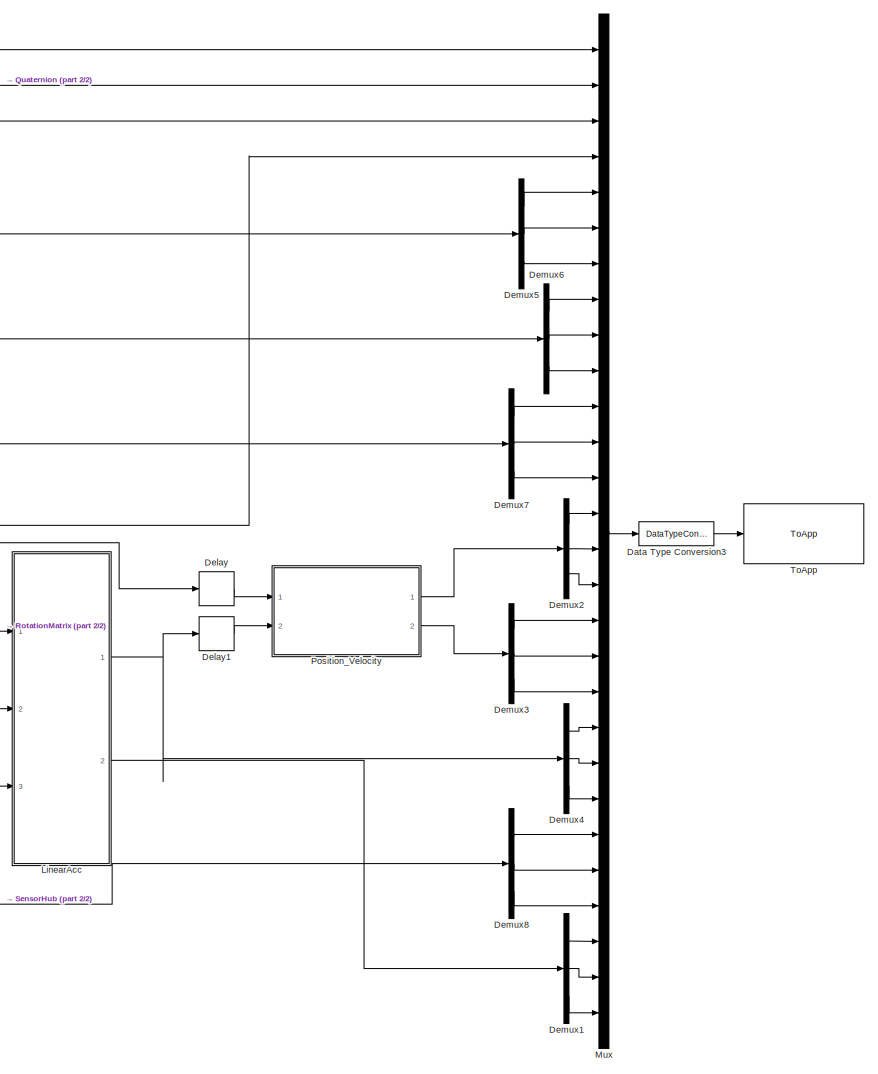
[diagram: root canvas - part 1/2, right side, full height]
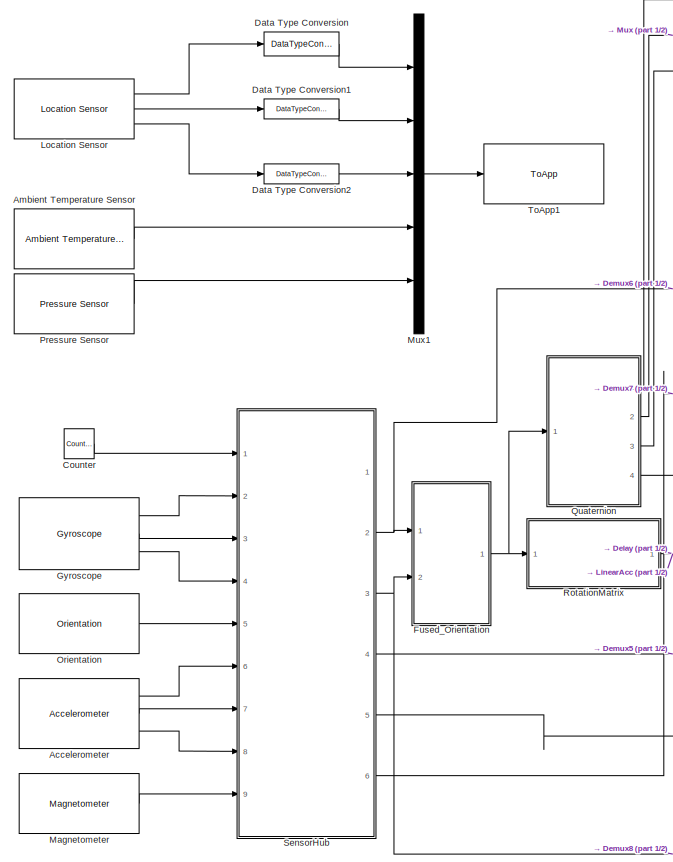
[diagram: root canvas - part 2/2, left side, full height]
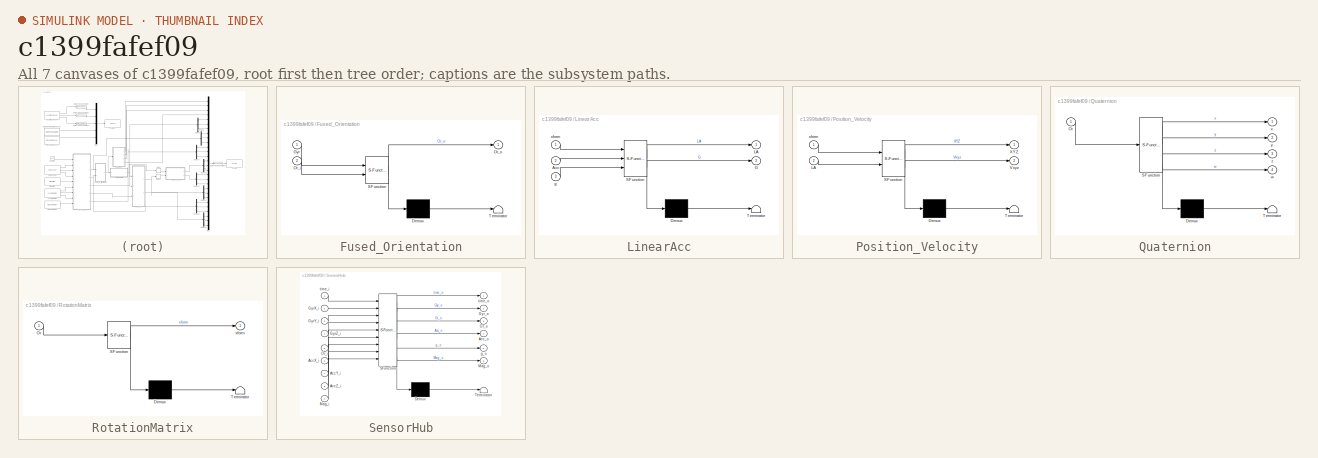
[diagram: thumbnail index - all 7 canvases of the model, root first then tree order]
MODEL slx_c1399fafef09
KIND model
CONFIG AbsTol = auto
CONFIG EnableMultiTasking = off
CONFIG FixedStep = auto
CONFIG MaxStep = auto
CONFIG MinStep = auto
CONFIG RelTol = 1e-3
CONFIG SampleTimeConstraint = Unconstrained
CONFIG Solver = FixedStepAuto
CONFIG SolverName = FixedStepAuto
CONFIG StartTime = 0.0
CONFIG StopTime = 10.0
BLOCK [Reference] Accelerometer  REF=androidsensorlib/Accelerometer
  Ports = [0, 3]
  SourceBlock = androidsensorlib/Accelerometer
  SourceProductBaseCode = ANDROID
  SourceProductName = Simulink Support Package for Android Devices
  SourceType = codertarget.internal.androidAccelerometer
BLOCK [Reference] Ambient Temperature Sensor  REF=androidsensorlib/Ambient Temperature Sensor
  Ports = [0, 1]
  SourceBlock = androidsensorlib/Ambient Temperature Sensor
  SourceProductBaseCode = ANDROID
  SourceProductName = Simulink Support Package for Android Devices
  SourceType = codertarget.internal.androidAmbientTemperature
BLOCK [Reference] Counter  REF=simulink/Sources/Counter
Free-Running
  Ports = [0, 1]
  SourceBlock = simulink/Sources/Counter\nFree-Running
  SourceProductBaseCode = SL
  SourceProductName = Simulink
  SourceType = Counter Free-Running
BLOCK [DataTypeConversion] Data Type Conversion
  OutDataTypeStr = single
  RndMeth = Floor
  SaturateOnIntegerOverflow = off
BLOCK [DataTypeConversion] Data Type Conversion1
  OutDataTypeStr = single
  RndMeth = Floor
  SaturateOnIntegerOverflow = off
BLOCK [DataTypeConversion] Data Type Conversion2
  OutDataTypeStr = single
  RndMeth = Floor
  SaturateOnIntegerOverflow = off
BLOCK [DataTypeConversion] Data Type Conversion3
  OutDataTypeStr = single
  RndMeth = Floor
  SaturateOnIntegerOverflow = off
BLOCK [Delay] Delay
  DelayLength = 1
  InitialCondition = 0
  InputPortMap = u0
  Ports = [1, 1]
BLOCK [Delay] Delay1
  DelayLength = 1
  InitialCondition = 0
  InputPortMap = u0
  Ports = [1, 1]
BLOCK [Demux] Demux1
  DisplayOption = bar
  Outputs = 3
  Ports = [1, 3]
BLOCK [Demux] Demux2
  DisplayOption = bar
  Outputs = 3
  Ports = [1, 3]
BLOCK [Demux] Demux3
  DisplayOption = bar
  Outputs = 3
  Ports = [1, 3]
BLOCK [Demux] Demux4
  DisplayOption = bar
  Outputs = 3
  Ports = [1, 3]
BLOCK [Demux] Demux5
  DisplayOption = bar
  Outputs = 3
  Ports = [1, 3]
BLOCK [Demux] Demux6
  DisplayOption = bar
  Outputs = 3
  Ports = [1, 3]
BLOCK [Demux] Demux7
  DisplayOption = bar
  Outputs = 3
  Ports = [1, 3]
BLOCK [Demux] Demux8
  DisplayOption = bar
  Outputs = 3
  Ports = [1, 3]
BLOCK [SubSystem] Fused_Orientation
  ErrorFcn = Stateflow.Translate.translate
  PermitHierarchicalResolution = ExplicitOnly
  Ports = [2, 1]
  RequestExecContextInheritance = off
  SFBlockType = MATLAB Function
  TreatAsAtomicUnit = on
BLOCK [Demux] Fused_Orientation/ Demux 
  Outputs = 1
  Ports = [1, 1]
BLOCK [S-Function] Fused_Orientation/ SFunction 
  EnableBusSupport = on
  FunctionName = sf_sfun
  PortCounts = [2 2]
  Ports = [2, 2]
  SFcnIsStateOwnerBlock = off
  SFunctionDeploymentMode = off
  Tag = Stateflow S-Function 5
BLOCK [Terminator] Fused_Orientation/ Terminator 
BLOCK [Inport] Fused_Orientation/Gyr
  IconDisplay = Port number
BLOCK [Inport] Fused_Orientation/Or_i
  IconDisplay = Port number
  Port = 2
BLOCK [Outport] Fused_Orientation/Or_o
  IconDisplay = Port number
BLOCK [Reference] Gyroscope  REF=androidsensorlib/Gyroscope
  Ports = [0, 3]
  SourceBlock = androidsensorlib/Gyroscope
  SourceProductBaseCode = ANDROID
  SourceProductName = Simulink Support Package for Android Devices
  SourceType = codertarget.internal.androidGyroscope
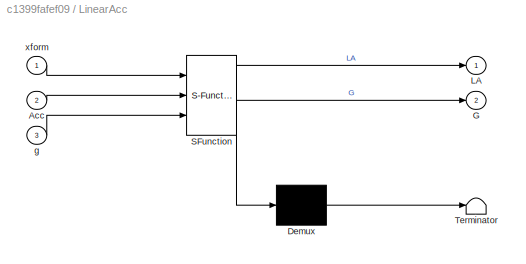
BLOCK [SubSystem] LinearAcc
  ErrorFcn = Stateflow.Translate.translate
  PermitHierarchicalResolution = ExplicitOnly
  Ports = [3, 2]
  RequestExecContextInheritance = off
  SFBlockType = MATLAB Function
  TreatAsAtomicUnit = on
BLOCK [Demux] LinearAcc/ Demux 
  Outputs = 1
  Ports = [1, 1]
BLOCK [S-Function] LinearAcc/ SFunction 
  EnableBusSupport = on
  FunctionName = sf_sfun
  PortCounts = [3 3]
  Ports = [3, 3]
  SFcnIsStateOwnerBlock = off
  SFunctionDeploymentMode = off
  Tag = Stateflow S-Function 1
BLOCK [Terminator] LinearAcc/ Terminator 
BLOCK [Inport] LinearAcc/Acc
  IconDisplay = Port number
  Port = 2
BLOCK [Outport] LinearAcc/G
  IconDisplay = Port number
  Port = 2
BLOCK [Outport] LinearAcc/LA
  IconDisplay = Port number
BLOCK [Inport] LinearAcc/g
  IconDisplay = Port number
  Port = 3
BLOCK [Inport] LinearAcc/xform
  IconDisplay = Port number
BLOCK [Reference] Location Sensor  REF=androidsensorlib/Location Sensor
  Ports = [0, 3]
  SourceBlock = androidsensorlib/Location Sensor
  SourceProductBaseCode = ANDROID
  SourceProductName = Simulink Support Package for Android Devices
  SourceType = codertarget.internal.androidLocation
BLOCK [Reference] Magnetometer  REF=androidsensorlib/Magnetometer
  Ports = [0, 1]
  SourceBlock = androidsensorlib/Magnetometer
  SourceProductBaseCode = ANDROID
  SourceProductName = Simulink Support Package for Android Devices
  SourceType = codertarget.internal.androidMagnetometer
BLOCK [Mux] Mux
  DisplayOption = bar
  Inputs = 28
  Ports = [28, 1]
BLOCK [Mux] Mux1
  DisplayOption = bar
  Inputs = 5
  Ports = [5, 1]
BLOCK [Reference] Orientation  REF=androidsensorlib/Orientation
  Ports = [0, 1]
  SourceBlock = androidsensorlib/Orientation
  SourceProductBaseCode = ANDROID
  SourceProductName = Simulink Support Package for Android Devices
  SourceType = codertarget.internal.androidOrientation
BLOCK [SubSystem] Position_Velocity
  ErrorFcn = Stateflow.Translate.translate
  PermitHierarchicalResolution = ExplicitOnly
  Ports = [2, 2]
  RequestExecContextInheritance = off
  SFBlockType = MATLAB Function
  TreatAsAtomicUnit = on
BLOCK [Demux] Position_Velocity/ Demux 
  Outputs = 1
  Ports = [1, 1]
BLOCK [S-Function] Position_Velocity/ SFunction 
  EnableBusSupport = on
  FunctionName = sf_sfun
  PortCounts = [2 3]
  Ports = [2, 3]
  SFcnIsStateOwnerBlock = off
  SFunctionDeploymentMode = off
  Tag = Stateflow S-Function 3
BLOCK [Terminator] Position_Velocity/ Terminator 
BLOCK [Inport] Position_Velocity/LA
  IconDisplay = Port number
  Port = 2
BLOCK [Outport] Position_Velocity/Vxyz
  IconDisplay = Port number
  Port = 2
BLOCK [Outport] Position_Velocity/XYZ
  IconDisplay = Port number
BLOCK [Inport] Position_Velocity/xform
  IconDisplay = Port number
BLOCK [Reference] Pressure Sensor  REF=androidsensorlib/Pressure Sensor
  Ports = [0, 1]
  SourceBlock = androidsensorlib/Pressure Sensor
  SourceProductBaseCode = ANDROID
  SourceProductName = Simulink Support Package for Android Devices
  SourceType = codertarget.internal.androidPressure
BLOCK [SubSystem] Quaternion
  ErrorFcn = Stateflow.Translate.translate
  PermitHierarchicalResolution = ExplicitOnly
  Ports = [1, 4]
  RequestExecContextInheritance = off
  SFBlockType = MATLAB Function
  TreatAsAtomicUnit = on
BLOCK [Demux] Quaternion/ Demux 
  Outputs = 1
  Ports = [1, 1]
BLOCK [S-Function] Quaternion/ SFunction 
  EnableBusSupport = on
  FunctionName = sf_sfun
  PortCounts = [1 5]
  Ports = [1, 5]
  SFcnIsStateOwnerBlock = off
  SFunctionDeploymentMode = off
  Tag = Stateflow S-Function 7
BLOCK [Terminator] Quaternion/ Terminator 
BLOCK [Inport] Quaternion/Or
  IconDisplay = Port number
BLOCK [Outport] Quaternion/w
  IconDisplay = Port number
  Port = 4
  VectorParamsAs1DForOutWhenUnconnected = off
BLOCK [Outport] Quaternion/x
  IconDisplay = Port number
  VectorParamsAs1DForOutWhenUnconnected = off
BLOCK [Outport] Quaternion/y
  IconDisplay = Port number
  Port = 2
  VectorParamsAs1DForOutWhenUnconnected = off
BLOCK [Outport] Quaternion/z
  IconDisplay = Port number
  Port = 3
  VectorParamsAs1DForOutWhenUnconnected = off
BLOCK [SubSystem] RotationMatrix
  ErrorFcn = Stateflow.Translate.translate
  PermitHierarchicalResolution = ExplicitOnly
  Ports = [1, 1]
  RequestExecContextInheritance = off
  SFBlockType = MATLAB Function
  TreatAsAtomicUnit = on
BLOCK [Demux] RotationMatrix/ Demux 
  Outputs = 1
  Ports = [1, 1]
BLOCK [S-Function] RotationMatrix/ SFunction 
  EnableBusSupport = on
  FunctionName = sf_sfun
  PortCounts = [1 2]
  Ports = [1, 2]
  SFcnIsStateOwnerBlock = off
  SFunctionDeploymentMode = off
  Tag = Stateflow S-Function 2
BLOCK [Terminator] RotationMatrix/ Terminator 
BLOCK [Inport] RotationMatrix/Or
  IconDisplay = Port number
BLOCK [Outport] RotationMatrix/xform
  IconDisplay = Port number
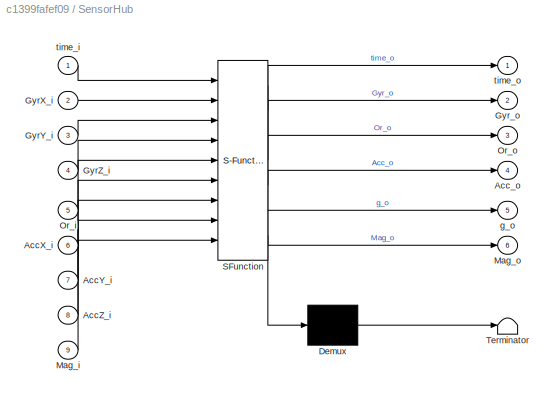
BLOCK [SubSystem] SensorHub
  ErrorFcn = Stateflow.Translate.translate
  PermitHierarchicalResolution = ExplicitOnly
  Ports = [9, 6]
  RequestExecContextInheritance = off
  SFBlockType = MATLAB Function
  TreatAsAtomicUnit = on
BLOCK [Demux] SensorHub/ Demux 
  Outputs = 1
  Ports = [1, 1]
BLOCK [S-Function] SensorHub/ SFunction 
  EnableBusSupport = on
  FunctionName = sf_sfun
  PortCounts = [9 7]
  Ports = [9, 7]
  SFcnIsStateOwnerBlock = off
  SFunctionDeploymentMode = off
  Tag = Stateflow S-Function 4
BLOCK [Terminator] SensorHub/ Terminator 
BLOCK [Inport] SensorHub/AccX_i
  IconDisplay = Port number
  Port = 6
BLOCK [Inport] SensorHub/AccY_i
  IconDisplay = Port number
  Port = 7
BLOCK [Inport] SensorHub/AccZ_i
  IconDisplay = Port number
  Port = 8
BLOCK [Outport] SensorHub/Acc_o
  IconDisplay = Port number
  Port = 4
BLOCK [Inport] SensorHub/GyrX_i
  IconDisplay = Port number
  Port = 2
BLOCK [Inport] SensorHub/GyrY_i
  IconDisplay = Port number
  Port = 3
BLOCK [Inport] SensorHub/GyrZ_i
  IconDisplay = Port number
  Port = 4
BLOCK [Outport] SensorHub/Gyr_o
  IconDisplay = Port number
  Port = 2
  VectorParamsAs1DForOutWhenUnconnected = off
BLOCK [Inport] SensorHub/Mag_i
  IconDisplay = Port number
  Port = 9
BLOCK [Outport] SensorHub/Mag_o
  IconDisplay = Port number
  Port = 6
BLOCK [Inport] SensorHub/Or_i
  IconDisplay = Port number
  Port = 5
BLOCK [Outport] SensorHub/Or_o
  IconDisplay = Port number
  Port = 3
BLOCK [Outport] SensorHub/g_o
  IconDisplay = Port number
  Port = 5
BLOCK [Inport] SensorHub/time_i
  IconDisplay = Port number
BLOCK [Outport] SensorHub/time_o
  IconDisplay = Port number
  VectorParamsAs1DForOutWhenUnconnected = off
BLOCK [Reference] ToApp  REF=androidadvancedlib/ToApp
  Ports = [1]
  SourceBlock = androidadvancedlib/ToApp
  SourceProductBaseCode = ANDROID
  SourceProductName = Simulink Support Package for Android Devices
  SourceType = codertarget.internal.androidToApp
BLOCK [Reference] ToApp1  REF=androidadvancedlib/ToApp
  Ports = [1]
  SourceBlock = androidadvancedlib/ToApp
  SourceProductBaseCode = ANDROID
  SourceProductName = Simulink Support Package for Android Devices
  SourceType = codertarget.internal.androidToApp
LINE Accelerometer:1 -> SensorHub:6
LINE Accelerometer:2 -> SensorHub:7
LINE Accelerometer:3 -> SensorHub:8
LINE Ambient Temperature Sensor:1 -> Mux1:4
LINE Counter:1 -> SensorHub:1
LINE Data Type Conversion1:1 -> Mux1:2
LINE Data Type Conversion2:1 -> Mux1:3
LINE Data Type Conversion3:1 -> ToApp:1
LINE Data Type Conversion:1 -> Mux1:1
LINE Delay1:1 -> Position_Velocity:2
LINE Delay:1 -> Position_Velocity:1
LINE Demux1:1 -> Mux:26
LINE Demux1:2 -> Mux:27
LINE Demux1:3 -> Mux:28
LINE Demux2:1 -> Mux:14
LINE Demux2:2 -> Mux:15
LINE Demux2:3 -> Mux:16
LINE Demux3:1 -> Mux:17
LINE Demux3:2 -> Mux:18
LINE Demux3:3 -> Mux:19
LINE Demux4:1 -> Mux:20
LINE Demux4:2 -> Mux:21
LINE Demux4:3 -> Mux:22
LINE Demux5:1 -> Mux:5
LINE Demux5:2 -> Mux:6
LINE Demux5:3 -> Mux:7
LINE Demux6:1 -> Mux:8
LINE Demux6:2 -> Mux:9
LINE Demux6:3 -> Mux:10
LINE Demux7:1 -> Mux:11
LINE Demux7:2 -> Mux:12
LINE Demux7:3 -> Mux:13
LINE Demux8:1 -> Mux:23
LINE Demux8:2 -> Mux:24
LINE Demux8:3 -> Mux:25
NET Fused_Orientation:1 -> Quaternion:1, RotationMatrix:1
LINE Gyroscope:1 -> SensorHub:2
LINE Gyroscope:2 -> SensorHub:3
LINE Gyroscope:3 -> SensorHub:4
NET LinearAcc:1 -> Delay1:1, Demux4:1
LINE LinearAcc:2 -> Demux1:1
LINE Location Sensor:1 -> Data Type Conversion:1
LINE Location Sensor:2 -> Data Type Conversion1:1
LINE Location Sensor:3 -> Data Type Conversion2:1
LINE Magnetometer:1 -> SensorHub:9
LINE Mux1:1 -> ToApp1:1
LINE Mux:1 -> Data Type Conversion3:1
LINE Orientation:1 -> SensorHub:5
LINE Position_Velocity:1 -> Demux2:1
LINE Position_Velocity:2 -> Demux3:1
LINE Pressure Sensor:1 -> Mux1:5
LINE Quaternion:1 -> Mux:1
LINE Quaternion:2 -> Mux:2
LINE Quaternion:3 -> Mux:3
LINE Quaternion:4 -> Mux:4
NET RotationMatrix:1 -> Delay:1, LinearAcc:1
NET SensorHub:2 -> Demux6:1, Fused_Orientation:1
NET SensorHub:3 -> Demux8:1, Fused_Orientation:2
NET SensorHub:4 -> Demux5:1, LinearAcc:2
LINE SensorHub:5 -> LinearAcc:3
LINE SensorHub:6 -> Demux7:1
note: NET lines group one-source signal fan-out (src -> all destinations, sorted); 1:1 wires keep LINE
CHART LinearAcc states=1 transitions=1
  STATE_LABEL 'eML_blk_kernel()'
  STATE_LABEL "SCRIPT:\nfunction [LA,G] = removeG(xform,Acc,g)\n    G = xform'*[0;0;g];\n    LA = (Acc-G);\n%     Best way to debug this module is to visualize on a scope"
CHART RotationMatrix states=1 transitions=1
  STATE_LABEL 'eML_blk_kernel()'
  STATE_LABEL 'SCRIPT:\nfunction xform = rot_mat(Or)\nroll = double(Or(1));\npitch = double(Or(2));\nyaw = double(Or(3));\n\nrz = [cos(yaw) -sin(yaw) 0;sin(yaw) cos(yaw) 0;0 0 1];\nry = [cos(pitch) 0 sin(pitch);0 1 0;-sin(pitch) 0 cos(pitch)];\nrx = [1 0 0;0 cos(roll) -sin(roll);0 sin(roll) cos(roll)];\nxform = (rz*ry*rx);    %Rotation Matrix\n'
CHART Position_Velocity states=1 transitions=1
  STATE_LABEL 'eML_blk_kernel()'
  STATE_LABEL 'SCRIPT:\nfunction [XYZ,Vxyz] = XYZ_UVW(xform,LA)\npersistent xyz; %Position\npersistent uvw; %Velocity\n    if(isempty(xyz))\n        xyz = double([0;0;0]);\n        uvw = double([0;0;0]);\n    end\n\n% xform = eye(3); %enable for testing only\n% LA = [0;0;0];\n% LA(1) = 0.1;\n\nXYZ = xyz + (xform*uvw*0.01);  %Update position vector using previous velocity vector\nxyz = XYZ;\n\nVxyz = uvw + LA*0.01;   %Update vel...<+27ch>'
CHART SensorHub states=1 transitions=1
  STATE_LABEL 'eML_blk_kernel()'
  STATE_LABEL 'SCRIPT:\nfunction  [time_o,Gyr_o,Or_o,Acc_o,g_o,Mag_o] = SensorConditioner(time_i,GyrX_i,GyrY_i,GyrZ_i,Or_i,AccX_i,AccY_i,AccZ_i,Mag_i)\n% Axis transformation for Android->ROS framework\n% Basic processing\n% Type conversion\n\ntime_o = time_i;\n\n% Smartphone axis are Z-Up, Y-Front, X-Right\n%ROS axis are Z-Up, X-Front, Y-Left\nAccX_o = double(AccY_i);\nAccY_o = double(-AccX_i);\nAccZ_o = double(AccZ_i);\nAcc...<+838ch>'
CHART Fused_Orientation states=1 transitions=1
  STATE_LABEL 'eML_blk_kernel()'
  STATE_LABEL 'SCRIPT:\nfunction Or_o = fuse_Or(Gyr,Or_i)\npersistent Or_p;\n    if(isempty(Or_p))\n        Or_p = double([0;0;0]);\n    end\n    \nfuse_c = double(0.9); %[0 1] 0-Acc, 1-Gyro\ndt = double(0.01);%Fixed delta-time\n\n% Complementary Filter\nOr_o = fuse_angles(Or_p + Gyr*dt,Or_i,fuse_c,1-fuse_c);\nOr_p = Or_o;\nend\n\n\nfunction out = fuse_angles(a,b,aw,bw)\nca = cos(a);\ncb = cos(b);\nsa = sin(a);\nsb = sin(b);\nco = c...<+63ch>'
CHART Quaternion states=1 transitions=1
  STATE_LABEL 'eML_blk_kernel()'
  STATE_LABEL 'SCRIPT:\nfunction  [x,y,z,w] = eul2quat(Or)\nroll = double(Or(1));\npitch = double(Or(2));\nyaw = double(Or(3));\n\n% Convert the quaternion to a yaw angle (zyx euler angle)\nquat = eul2quat([yaw,roll,pitch]);\nx = quat(1); y = quat(2); z = quat(3); w = quat(4);\n\nend\n'
